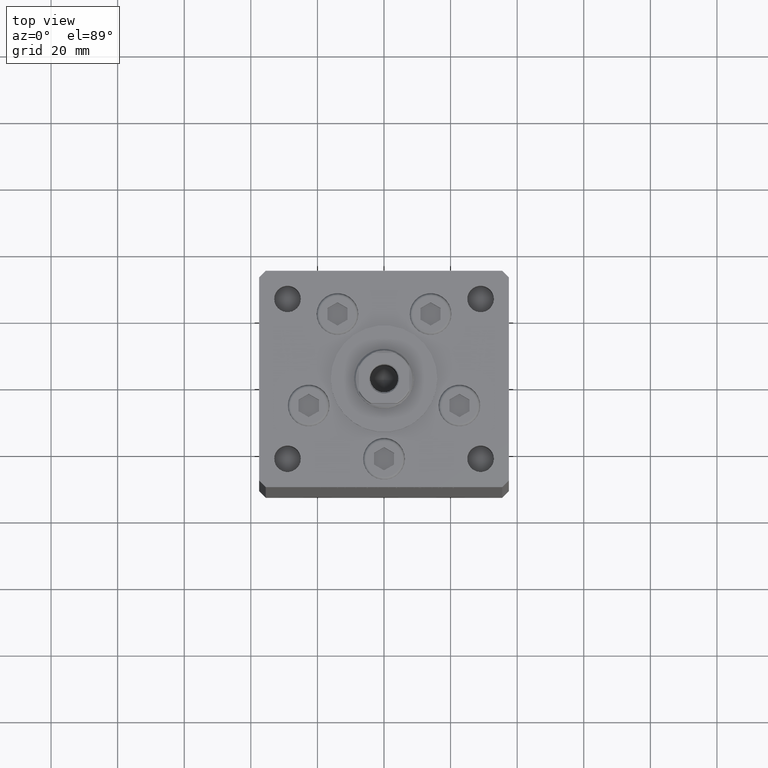
[diagram: clean part render]
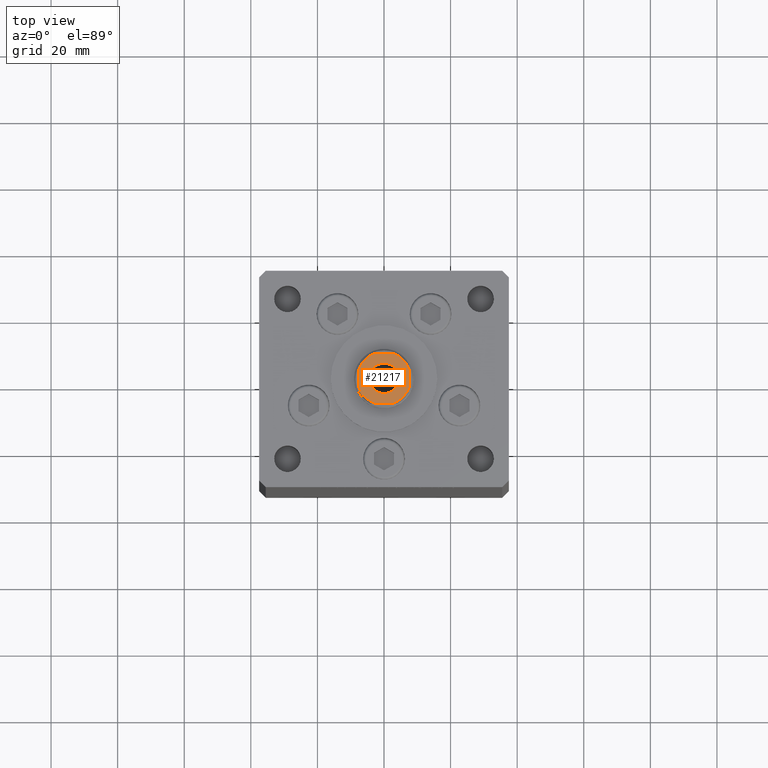
[diagram: same view with one face highlighted and labeled with its STEP entity id]
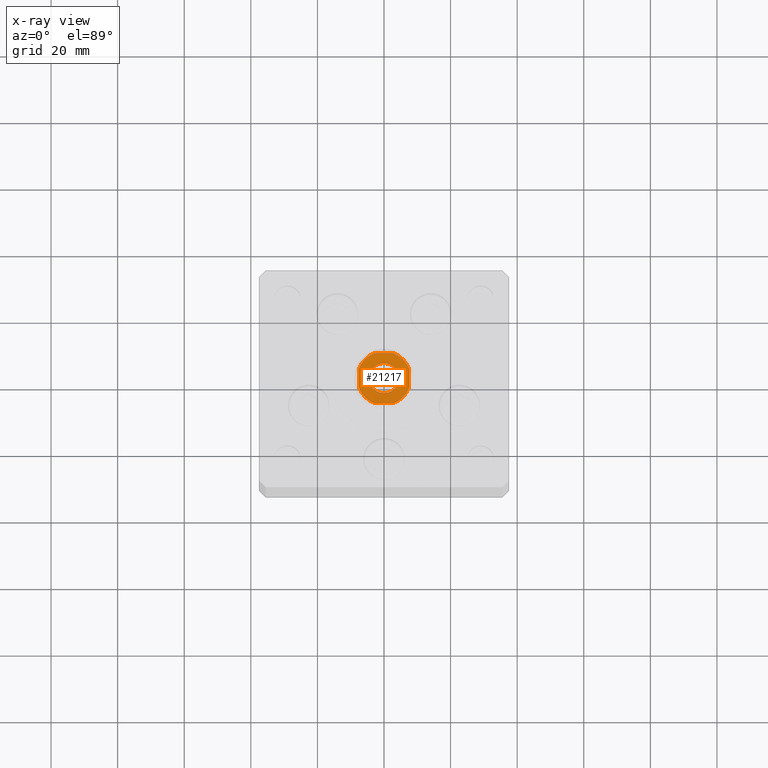
[diagram: x-ray of the same camera — body ghosted, the highlighted face saturated]
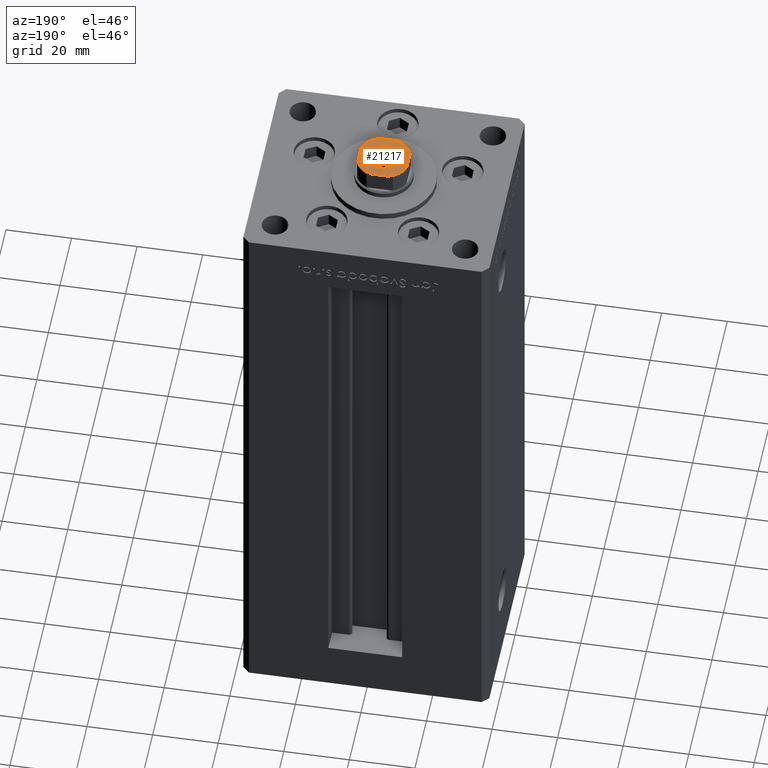
[diagram: same view with one face highlighted and labeled with its STEP entity id]
A machine part, top view. The second image highlights one B-rep face of the part: STEP entity #21217.
The next image is the same camera in x-ray: the body ghosted, the highlighted face saturated — about 0% of this face is hidden behind the body in this view.
A second angle (auxiliary view) of the same face is appended — the face is thin or edge-on in the first view.
In plain terms, the highlighted planar face has unit normal (0, 0, 1).
Its self-contained STEP definition (entity closure, byte-faithful):
#82 = FACE_OUTER_BOUND ( 'NONE', #3618, .T. ) ;
#356 = ORIENTED_EDGE ( 'NONE', *, *, #5923, .T. ) ;
#549 = DIRECTION ( 'NONE',  ( -0.000000000000000000, 0.000000000000000000, 1.000000000000000000 ) ) ;
#602 = ORIENTED_EDGE ( 'NONE', *, *, #31837, .T. ) ;
#663 = EDGE_LOOP ( 'NONE', ( #2785, #22487 ) ) ;
#874 = CARTESIAN_POINT ( 'NONE',  ( 0.000000000000000000, 0.000000000000000000, 168.0000000000000000 ) ) ;
#1147 = CARTESIAN_POINT ( 'NONE',  ( 0.000000000000000000, 0.000000000000000000, 168.0000000000000000 ) ) ;
#1775 = EDGE_CURVE ( 'NONE', #14048, #3266, #14889, .T. ) ;
#2142 = VERTEX_POINT ( 'NONE', #2476 ) ;
#2476 = CARTESIAN_POINT ( 'NONE',  ( 4.550000000000012257, 0.000000000000000000, 168.0000000000000000 ) ) ;
#2575 = VERTEX_POINT ( 'NONE', #38545 ) ;
#2785 = ORIENTED_EDGE ( 'NONE', *, *, #32134, .T. ) ;
#3266 = VERTEX_POINT ( 'NONE', #19593 ) ;
#3618 = EDGE_LOOP ( 'NONE', ( #20369, #10311, #38272, #356, #39089, #12940, #602, #35149 ) ) ;
#3905 = CARTESIAN_POINT ( 'NONE',  ( 7.500000000000000888, 2.783882181415007206, 168.0000000000000000 ) ) ;
#4581 = CARTESIAN_POINT ( 'NONE',  ( 0.000000000000000000, 0.000000000000000000, 168.0000000000000000 ) ) ;
#4793 = CIRCLE ( 'NONE', #39390, 8.000000000000000000 ) ;
#5435 = DIRECTION ( 'NONE',  ( 1.000000000000000000, 0.000000000000000000, 0.000000000000000000 ) ) ;
#5923 = EDGE_CURVE ( 'NONE', #2575, #46695, #46912, .T. ) ;
#8014 = DIRECTION ( 'NONE',  ( 0.000000000000000000, -0.000000000000000000, -1.000000000000000000 ) ) ;
#8849 = DIRECTION ( 'NONE',  ( -1.000000000000000000, -5.782411586589357392E-17, -0.000000000000000000 ) ) ;
#9024 = DIRECTION ( 'NONE',  ( 1.000000000000000000, 0.000000000000000000, 0.000000000000000000 ) ) ;
#10311 = ORIENTED_EDGE ( 'NONE', *, *, #42500, .T. ) ;
#12219 = CARTESIAN_POINT ( 'NONE',  ( -2.783882181415013868, 7.499999999999999112, 168.0000000000000000 ) ) ;
#12582 = EDGE_CURVE ( 'NONE', #48545, #2575, #40435, .T. ) ;
#12940 = ORIENTED_EDGE ( 'NONE', *, *, #1775, .T. ) ;
#12989 = DIRECTION ( 'NONE',  ( -0.000000000000000000, 0.000000000000000000, 1.000000000000000000 ) ) ;
#13064 = VECTOR ( 'NONE', #45359, 1000.000000000000000 ) ;
#14048 = VERTEX_POINT ( 'NONE', #3905 ) ;
#14889 = CIRCLE ( 'NONE', #18240, 8.000000000000000000 ) ;
#15070 = CARTESIAN_POINT ( 'NONE',  ( 7.500000000000000888, -2.783882181415009427, 168.0000000000000000 ) ) ;
#15524 = CIRCLE ( 'NONE', #35762, 4.550000000000012257 ) ;
#15579 = EDGE_CURVE ( 'NONE', #46695, #14048, #30546, .T. ) ;
#16129 = CARTESIAN_POINT ( 'NONE',  ( -2.783882181415010315, -7.500000000000000888, 168.0000000000000000 ) ) ;
#16936 = CARTESIAN_POINT ( 'NONE',  ( -7.499999999999997335, -7.500000000000000888, 168.0000000000000000 ) ) ;
#16984 = VERTEX_POINT ( 'NONE', #18556 ) ;
#17714 = EDGE_CURVE ( 'NONE', #50549, #27762, #26897, .T. ) ;
#18240 = AXIS2_PLACEMENT_3D ( 'NONE', #50019, #21508, #5435 ) ;
#18553 = EDGE_CURVE ( 'NONE', #16984, #2142, #38744, .T. ) ;
#18556 = CARTESIAN_POINT ( 'NONE',  ( -4.550000000000012257, 5.572142936120472118E-16, 168.0000000000000000 ) ) ;
#19583 = CARTESIAN_POINT ( 'NONE',  ( 0.000000000000000000, 0.000000000000000000, 168.0000000000000000 ) ) ;
#19593 = CARTESIAN_POINT ( 'NONE',  ( 2.783882181415012980, 7.500000000000000000, 168.0000000000000000 ) ) ;
#20100 = FACE_BOUND ( 'NONE', #663, .T. ) ;
#20238 = VECTOR ( 'NONE', #42670, 1000.000000000000000 ) ;
#20369 = ORIENTED_EDGE ( 'NONE', *, *, #40513, .T. ) ;
#21083 = AXIS2_PLACEMENT_3D ( 'NONE', #19583, #28278, #45423 ) ;
#21217 = ADVANCED_FACE ( 'NONE', ( #20100, #82 ), #39665, .T. ) ;
#21508 = DIRECTION ( 'NONE',  ( -0.000000000000000000, 0.000000000000000000, 1.000000000000000000 ) ) ;
#22487 = ORIENTED_EDGE ( 'NONE', *, *, #18553, .T. ) ;
#23406 = VERTEX_POINT ( 'NONE', #27792 ) ;
#24407 = DIRECTION ( 'NONE',  ( 1.000000000000000000, 0.000000000000000000, 0.000000000000000000 ) ) ;
#24673 = CARTESIAN_POINT ( 'NONE',  ( -7.499999999999998224, 7.499999999999999112, 168.0000000000000000 ) ) ;
#26897 = CIRCLE ( 'NONE', #46285, 8.000000000000000000 ) ;
#27762 = VERTEX_POINT ( 'NONE', #44886 ) ;
#27792 = CARTESIAN_POINT ( 'NONE',  ( -7.499999999999998224, -2.783882181415016088, 168.0000000000000000 ) ) ;
#28278 = DIRECTION ( 'NONE',  ( -0.000000000000000000, 0.000000000000000000, 1.000000000000000000 ) ) ;
#28367 = DIRECTION ( 'NONE',  ( -0.000000000000000000, 0.000000000000000000, 1.000000000000000000 ) ) ;
#29016 = DIRECTION ( 'NONE',  ( 1.000000000000000000, 0.000000000000000000, 0.000000000000000000 ) ) ;
#29150 = LINE ( 'NONE', #24673, #39937 ) ;
#29409 = CARTESIAN_POINT ( 'NONE',  ( 0.000000000000000000, 0.000000000000000000, 168.0000000000000000 ) ) ;
#29464 = AXIS2_PLACEMENT_3D ( 'NONE', #1147, #49154, #41756 ) ;
#29783 = CARTESIAN_POINT ( 'NONE',  ( -7.499999999999998224, 7.499999999999999112, 168.0000000000000000 ) ) ;
#29817 = DIRECTION ( 'NONE',  ( 1.000000000000000000, 0.000000000000000000, 0.000000000000000000 ) ) ;
#30546 = LINE ( 'NONE', #42941, #20238 ) ;
#31837 = EDGE_CURVE ( 'NONE', #3266, #50549, #29150, .T. ) ;
#32134 = EDGE_CURVE ( 'NONE', #2142, #16984, #15524, .T. ) ;
#32741 = VECTOR ( 'NONE', #49131, 1000.000000000000000 ) ;
#35149 = ORIENTED_EDGE ( 'NONE', *, *, #17714, .T. ) ;
#35762 = AXIS2_PLACEMENT_3D ( 'NONE', #4581, #8014, #29817 ) ;
#35995 = AXIS2_PLACEMENT_3D ( 'NONE', #874, #12989, #9024 ) ;
#37708 = LINE ( 'NONE', #29783, #13064 ) ;
#38272 = ORIENTED_EDGE ( 'NONE', *, *, #12582, .T. ) ;
#38545 = CARTESIAN_POINT ( 'NONE',  ( 2.783882181415008539, -7.500000000000000888, 168.0000000000000000 ) ) ;
#38744 = CIRCLE ( 'NONE', #29464, 4.550000000000012257 ) ;
#39089 = ORIENTED_EDGE ( 'NONE', *, *, #15579, .T. ) ;
#39390 = AXIS2_PLACEMENT_3D ( 'NONE', #29409, #28367, #24407 ) ;
#39665 = PLANE ( 'NONE',  #21083 ) ;
#39937 = VECTOR ( 'NONE', #8849, 1000.000000000000000 ) ;
#40435 = LINE ( 'NONE', #16936, #32741 ) ;
#40513 = EDGE_CURVE ( 'NONE', #27762, #23406, #37708, .T. ) ;
#41756 = DIRECTION ( 'NONE',  ( 1.000000000000000000, 0.000000000000000000, 0.000000000000000000 ) ) ;
#42500 = EDGE_CURVE ( 'NONE', #23406, #48545, #4793, .T. ) ;
#42670 = DIRECTION ( 'NONE',  ( 1.156482317317871478E-16, 1.000000000000000000, -0.000000000000000000 ) ) ;
#42941 = CARTESIAN_POINT ( 'NONE',  ( 7.500000000000001776, 7.500000000000000000, 168.0000000000000000 ) ) ;
#44886 = CARTESIAN_POINT ( 'NONE',  ( -7.499999999999998224, 2.783882181415015644, 168.0000000000000000 ) ) ;
#45359 = DIRECTION ( 'NONE',  ( 5.782411586589357392E-17, -1.000000000000000000, 0.000000000000000000 ) ) ;
#45423 = DIRECTION ( 'NONE',  ( 1.000000000000000000, 0.000000000000000000, 0.000000000000000000 ) ) ;
#46285 = AXIS2_PLACEMENT_3D ( 'NONE', #49078, #549, #29016 ) ;
#46695 = VERTEX_POINT ( 'NONE', #15070 ) ;
#46912 = CIRCLE ( 'NONE', #35995, 8.000000000000000000 ) ;
#48545 = VERTEX_POINT ( 'NONE', #16129 ) ;
#49078 = CARTESIAN_POINT ( 'NONE',  ( 0.000000000000000000, 0.000000000000000000, 168.0000000000000000 ) ) ;
#49131 = DIRECTION ( 'NONE',  ( 1.000000000000000000, 5.782411586589358625E-17, 0.000000000000000000 ) ) ;
#49154 = DIRECTION ( 'NONE',  ( 0.000000000000000000, -0.000000000000000000, -1.000000000000000000 ) ) ;
#50019 = CARTESIAN_POINT ( 'NONE',  ( 0.000000000000000000, 0.000000000000000000, 168.0000000000000000 ) ) ;
#50549 = VERTEX_POINT ( 'NONE', #12219 ) ;